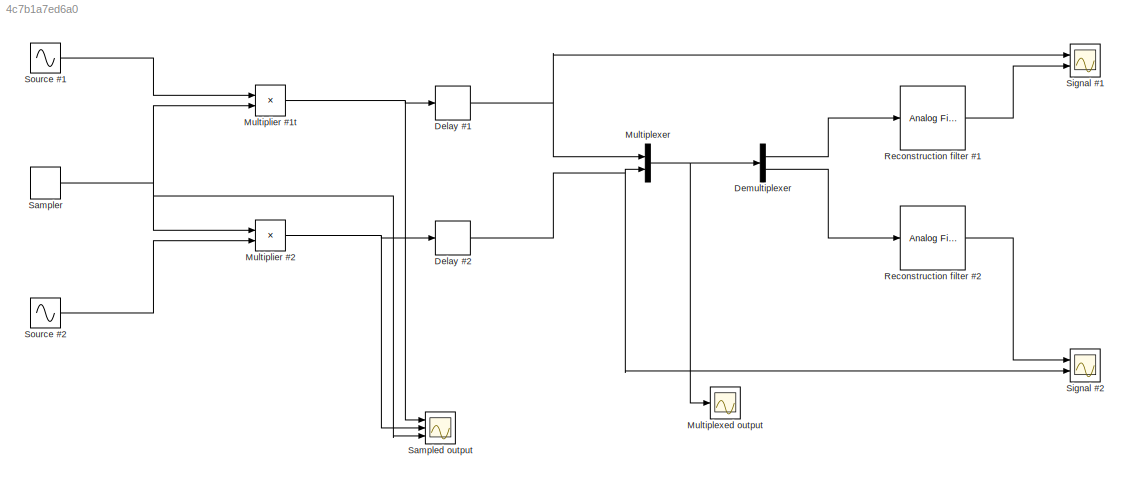
MODEL slx_4c7b1a7ed6a0
KIND model
CONFIG AbsTol = auto
CONFIG EnableMultiTasking = off
CONFIG FixedStep = auto
CONFIG MaxStep = auto
CONFIG MinStep = auto
CONFIG RelTol = 1e-3
CONFIG SampleTimeConstraint = Unconstrained
CONFIG Solver = VariableStepAuto
CONFIG SolverName = VariableStepAuto
CONFIG StartTime = 0.0
CONFIG StopTime = 30
BLOCK [Delay] Delay #1
  DelayLength = 1
  InitialCondition = 0
  InputPortMap = u0
  Ports = [1, 1]
BLOCK [Delay] Delay #2
  DelayLength = 3
  InitialCondition = 0
  InputPortMap = u0
  Ports = [1, 1]
BLOCK [Demux] Demultiplexer
  Outputs = 2
  Ports = [1, 2]
BLOCK [Scope] Multiplexed output
  Floating = off
  NumInputPorts = 1
  Ports = [1]
  ScopeSpecificationString = Simulink.scopes.TimeScopeBlockCfg('CurrentConfiguration', extmgr.ConfigurationSet(extmgr.Configuration('Core','General UI',true),extmgr.Configuration('Core','Source UI',true),extmgr.Configuration('Sources','WiredSimulink',true,'DataLoggingVariableName','ScopeData1'),extmgr.Configuration('Visuals','Time Domain',true,'SerializedDisplays',{struct('MinYLimReal','-1.24968','MaxYLimReal','1.24718','YLab...<+1405ch>
BLOCK [Mux] Multiplexer
  DisplayOption = bar
  Inputs = 2
  Ports = [2, 1]
BLOCK [Product] Multiplier #1t
  Ports = [2, 1]
BLOCK [Product] Multiplier #2
  Ports = [2, 1]
BLOCK [Reference] Reconstruction filter #1  REF=dsparch4/Analog
Filter Design
  Ports = [1, 1]
  SourceBlock = dsparch4/Analog\nFilter Design
  SourceProductBaseCode = DS
  SourceType = Analog Filter Design
BLOCK [Reference] Reconstruction filter #2  REF=dsparch4/Analog
Filter Design
  Ports = [1, 1]
  SourceBlock = dsparch4/Analog\nFilter Design
  SourceProductBaseCode = DS
  SourceType = Analog Filter Design
BLOCK [Scope] Sampled output
  Floating = off
  NumInputPorts = 3
  Ports = [3]
  ScopeSpecificationString = Simulink.scopes.TimeScopeBlockCfg('CurrentConfiguration', extmgr.ConfigurationSet(extmgr.Configuration('Core','General UI',true),extmgr.Configuration('Core','Source UI',true),extmgr.Configuration('Sources','WiredSimulink',true),extmgr.Configuration('Visuals','Time Domain',true,'SerializedDisplays',{struct('MinYLimReal','-1.24968','MaxYLimReal','1.24718','YLabelReal','','MinYLimMag','0.00000','MaxY...<+2707ch>
BLOCK [DiscretePulseGenerator] Sampler
  Period = 0.5
  Ports = [0, 1]
  PulseType = Time based
  PulseWidth = 10
BLOCK [Scope] Signal #1
  Floating = off
  NumInputPorts = 2
  Ports = [2]
  ScopeSpecificationString = Simulink.scopes.TimeScopeBlockCfg('CurrentConfiguration', extmgr.ConfigurationSet(extmgr.Configuration('Core','General UI',true),extmgr.Configuration('Core','Source UI',true),extmgr.Configuration('Sources','WiredSimulink',true,'DataLoggingVariableName','ScopeData2'),extmgr.Configuration('Visuals','Time Domain',true,'SerializedDisplays',{struct('MinYLimReal','-1.24968','MaxYLimReal','1.24718','YLab...<+2030ch>
BLOCK [Scope] Signal #2
  Floating = off
  NumInputPorts = 2
  Ports = [2]
  ScopeSpecificationString = Simulink.scopes.TimeScopeBlockCfg('CurrentConfiguration', extmgr.ConfigurationSet(extmgr.Configuration('Core','General UI',true),extmgr.Configuration('Core','Source UI',true),extmgr.Configuration('Sources','WiredSimulink',true,'DataLoggingVariableName','ScopeData3'),extmgr.Configuration('Visuals','Time Domain',true,'SerializedDisplays',{struct('MinYLimReal','-0.17811','MaxYLimReal','0.17771','YLab...<+2054ch>
BLOCK [Sin] Source #1
  Ports = [0, 1]
  SampleTime = 0.1
BLOCK [Sin] Source #2
  Frequency = 0.5
  Ports = [0, 1]
  SampleTime = 0.1
NET Delay #1:1 -> Multiplexer:1, Signal #1:1
NET Delay #2:1 -> Multiplexer:2, Signal #2:2
LINE Demultiplexer:1 -> Reconstruction filter #1:1
LINE Demultiplexer:2 -> Reconstruction filter #2:1
NET Multiplexer:1 -> Demultiplexer:1, Multiplexed output:1
NET Multiplier #1t:1 -> Delay #1:1, Sampled output:1
NET Multiplier #2:1 -> Delay #2:1, Sampled output:2
LINE Reconstruction filter #1:1 -> Signal #1:2
LINE Reconstruction filter #2:1 -> Signal #2:1
NET Sampler:1 -> Multiplier #1t:2, Multiplier #2:1, Sampled output:3
LINE Source #1:1 -> Multiplier #1t:1
LINE Source #2:1 -> Multiplier #2:2
note: NET lines group one-source signal fan-out (src -> all destinations, sorted); 1:1 wires keep LINE
